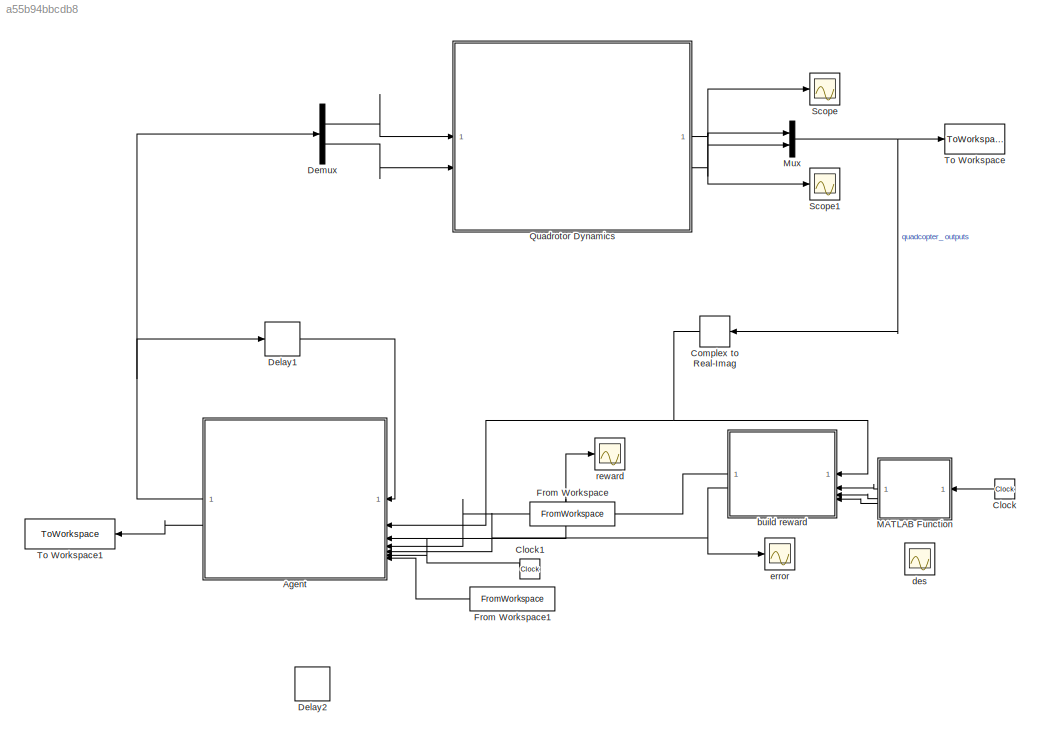
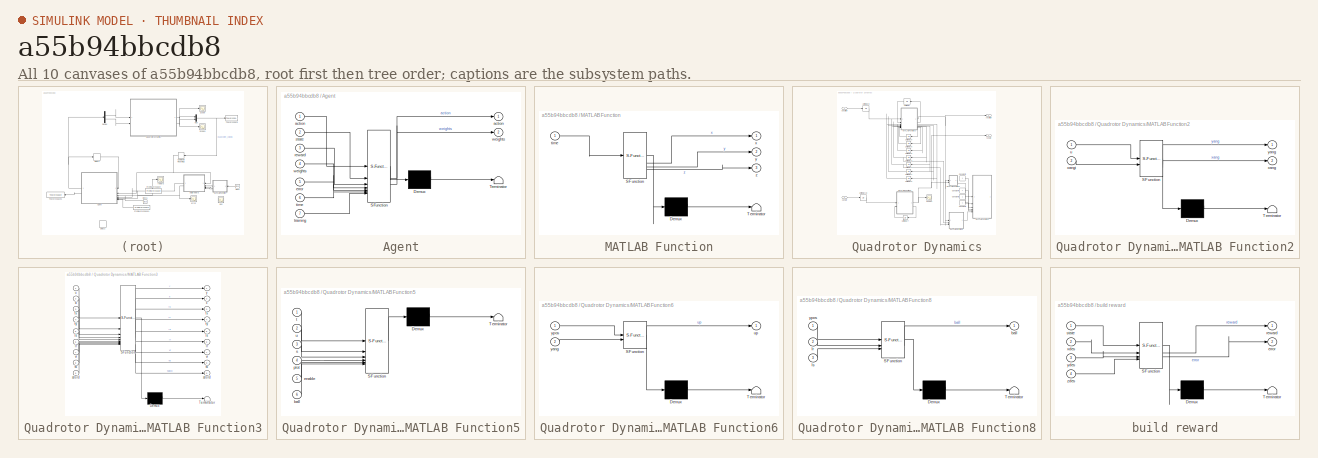
[diagram: thumbnail index - all 10 canvases of the model, root first then tree order]
MODEL slx_a55b94bbcdb8
KIND model
CONFIG AbsTol = auto
CONFIG EnableMultiTasking = off
CONFIG FixedStep = 0.025
CONFIG MaxStep = auto
CONFIG MinStep = auto
CONFIG RelTol = 1e-3
CONFIG SampleTimeConstraint = Unconstrained
CONFIG SolverName = FixedStepDiscrete
CONFIG StartTime = 0.0
CONFIG StopTime = 75
BLOCK [SubSystem] Agent
  ErrorFcn = Stateflow.Translate.translate
  LibrarySourceBlock = simulink/User-Defined\nFunctions/MATLAB Function
  PermitHierarchicalResolution = ExplicitOnly
  SFBlockType = MATLAB Function
  TreatAsAtomicUnit = on
BLOCK [Demux] Agent/ Demux 
  Outputs = 1
BLOCK [S-Function] Agent/ SFunction 
  EnableBusSupport = on
  FunctionName = sf_sfun
  PortCounts = [7 3]
  SFcnIsStateOwnerBlock = off
  SFunctionDeploymentMode = off
  Tag = Stateflow S-Function 1
BLOCK [Terminator] Agent/ Terminator 
BLOCK [Outport] Agent/action
BLOCK [Inport] Agent/action 
BLOCK [Inport] Agent/error
  Port = 5
BLOCK [Inport] Agent/reward
  Port = 3
BLOCK [Inport] Agent/state
  Port = 2
BLOCK [Inport] Agent/time
  Port = 6
BLOCK [Inport] Agent/training
  Port = 7
BLOCK [Outport] Agent/weights
  Port = 2
BLOCK [Inport] Agent/weights 
  Port = 4
BLOCK [Clock] Clock
BLOCK [Clock] Clock1
BLOCK [ComplexToRealImag] Complex to Real-Imag
BLOCK [Delay] Delay1
  DelayLength = 1
  InitialCondition = 0
  InputPortMap = u0
BLOCK [Delay] Delay2
  DelayLength = 1
  InitialCondition = 0
  InputPortMap = u0
BLOCK [Demux] Demux
  DisplayOption = none
  Outputs = 2
BLOCK [FromWorkspace] From Workspace
  SampleTime = -1
  VariableName = weights
BLOCK [FromWorkspace] From Workspace1
  SampleTime = -1
  VariableName = training
BLOCK [SubSystem] MATLAB Function
  ErrorFcn = Stateflow.Translate.translate
  PermitHierarchicalResolution = ExplicitOnly
  SFBlockType = MATLAB Function
  TreatAsAtomicUnit = on
BLOCK [Demux] MATLAB Function/ Demux 
  Outputs = 1
BLOCK [S-Function] MATLAB Function/ SFunction 
  EnableBusSupport = on
  FunctionName = sf_sfun
  PortCounts = [1 4]
  SFcnIsStateOwnerBlock = off
  SFunctionDeploymentMode = off
  Tag = Stateflow S-Function 3
BLOCK [Terminator] MATLAB Function/ Terminator 
BLOCK [Inport] MATLAB Function/time
BLOCK [Outport] MATLAB Function/x
BLOCK [Outport] MATLAB Function/y
  Port = 2
BLOCK [Outport] MATLAB Function/z
  Port = 3
BLOCK [Mux] Mux
  DisplayOption = bar
  Inputs = 2
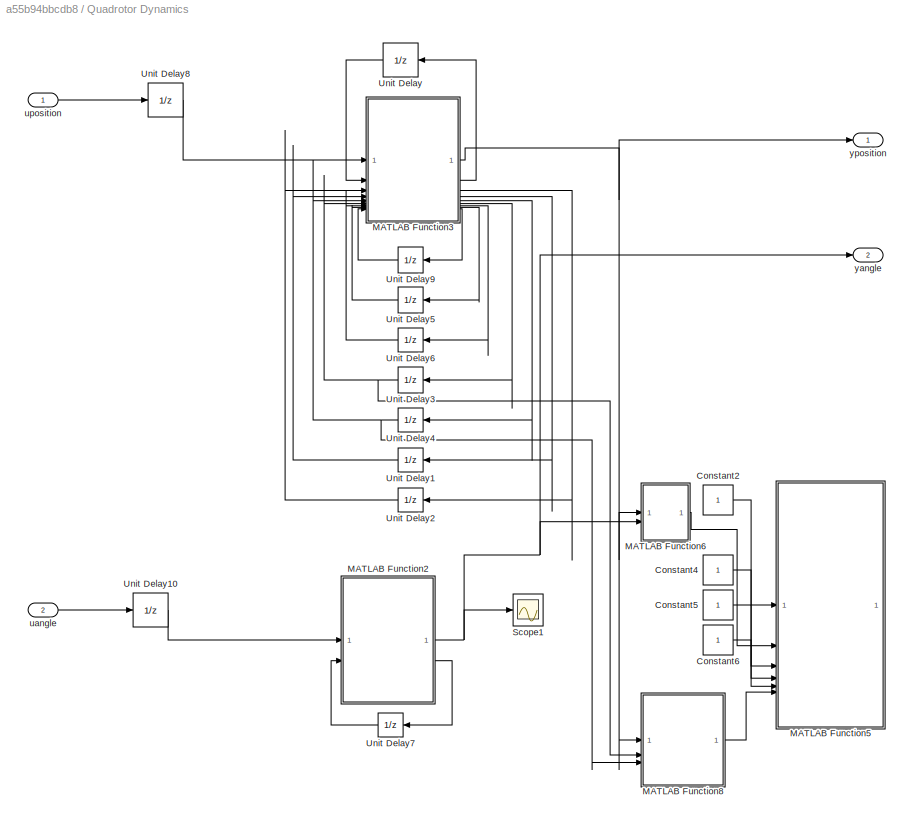
BLOCK [SubSystem] Quadrotor Dynamics
BLOCK [Constant] Quadrotor Dynamics/Constant2
BLOCK [Constant] Quadrotor Dynamics/Constant4
BLOCK [Constant] Quadrotor Dynamics/Constant5
BLOCK [Constant] Quadrotor Dynamics/Constant6
BLOCK [SubSystem] Quadrotor Dynamics/MATLAB Function2
  ErrorFcn = Stateflow.Translate.translate
  PermitHierarchicalResolution = ExplicitOnly
  SFBlockType = MATLAB Function
  TreatAsAtomicUnit = on
BLOCK [Demux] Quadrotor Dynamics/MATLAB Function2/ Demux 
  Outputs = 1
BLOCK [S-Function] Quadrotor Dynamics/MATLAB Function2/ SFunction 
  EnableBusSupport = on
  FunctionName = sf_sfun
  PortCounts = [2 3]
  SFcnIsStateOwnerBlock = off
  SFunctionDeploymentMode = off
  Tag = Stateflow S-Function 10
BLOCK [Terminator] Quadrotor Dynamics/MATLAB Function2/ Terminator 
BLOCK [Inport] Quadrotor Dynamics/MATLAB Function2/u
BLOCK [Outport] Quadrotor Dynamics/MATLAB Function2/xang
  Port = 2
BLOCK [Inport] Quadrotor Dynamics/MATLAB Function2/xangi
  Port = 2
BLOCK [Outport] Quadrotor Dynamics/MATLAB Function2/yang
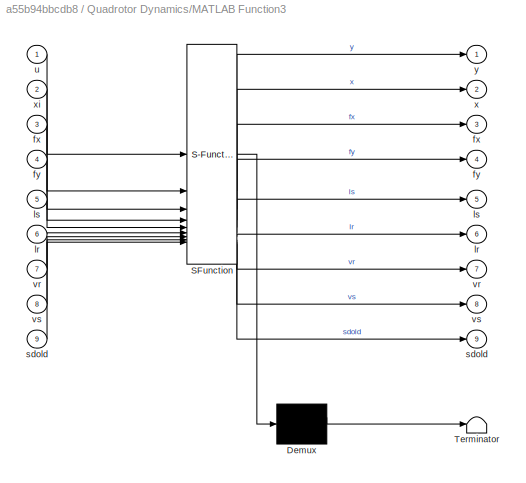
BLOCK [SubSystem] Quadrotor Dynamics/MATLAB Function3
  ErrorFcn = Stateflow.Translate.translate
  PermitHierarchicalResolution = ExplicitOnly
  SFBlockType = MATLAB Function
  TreatAsAtomicUnit = on
BLOCK [Demux] Quadrotor Dynamics/MATLAB Function3/ Demux 
  Outputs = 1
BLOCK [S-Function] Quadrotor Dynamics/MATLAB Function3/ SFunction 
  EnableBusSupport = on
  FunctionName = sf_sfun
  PortCounts = [9 10]
  SFcnIsStateOwnerBlock = off
  SFunctionDeploymentMode = off
  Tag = Stateflow S-Function 11
BLOCK [Terminator] Quadrotor Dynamics/MATLAB Function3/ Terminator 
BLOCK [Outport] Quadrotor Dynamics/MATLAB Function3/fx
  Port = 3
BLOCK [Inport] Quadrotor Dynamics/MATLAB Function3/fx 
  Port = 3
BLOCK [Outport] Quadrotor Dynamics/MATLAB Function3/fy
  Port = 4
BLOCK [Inport] Quadrotor Dynamics/MATLAB Function3/fy 
  Port = 4
BLOCK [Outport] Quadrotor Dynamics/MATLAB Function3/lr
  Port = 6
BLOCK [Inport] Quadrotor Dynamics/MATLAB Function3/lr 
  Port = 6
BLOCK [Outport] Quadrotor Dynamics/MATLAB Function3/ls
  Port = 5
BLOCK [Inport] Quadrotor Dynamics/MATLAB Function3/ls 
  Port = 5
BLOCK [Outport] Quadrotor Dynamics/MATLAB Function3/sdold
  Port = 9
BLOCK [Inport] Quadrotor Dynamics/MATLAB Function3/sdold 
  Port = 9
BLOCK [Inport] Quadrotor Dynamics/MATLAB Function3/u
BLOCK [Outport] Quadrotor Dynamics/MATLAB Function3/vr
  Port = 7
BLOCK [Inport] Quadrotor Dynamics/MATLAB Function3/vr 
  Port = 7
BLOCK [Outport] Quadrotor Dynamics/MATLAB Function3/vs
  Port = 8
BLOCK [Inport] Quadrotor Dynamics/MATLAB Function3/vs 
  Port = 8
BLOCK [Outport] Quadrotor Dynamics/MATLAB Function3/x
  Port = 2
BLOCK [Inport] Quadrotor Dynamics/MATLAB Function3/xi
  Port = 2
BLOCK [Outport] Quadrotor Dynamics/MATLAB Function3/y
BLOCK [SubSystem] Quadrotor Dynamics/MATLAB Function5
  ErrorFcn = Stateflow.Translate.translate
  PermitHierarchicalResolution = ExplicitOnly
  SFBlockType = MATLAB Function
  TreatAsAtomicUnit = on
BLOCK [Demux] Quadrotor Dynamics/MATLAB Function5/ Demux 
  Outputs = 1
BLOCK [S-Function] Quadrotor Dynamics/MATLAB Function5/ SFunction 
  EnableBusSupport = on
  FunctionName = sf_sfun
  PortCounts = [6 1]
  SFcnIsStateOwnerBlock = off
  SFunctionDeploymentMode = off
  Tag = Stateflow S-Function 12
BLOCK [Terminator] Quadrotor Dynamics/MATLAB Function5/ Terminator 
BLOCK [Inport] Quadrotor Dynamics/MATLAB Function5/ball
  Port = 6
BLOCK [Inport] Quadrotor Dynamics/MATLAB Function5/enable
  Port = 5
BLOCK [Inport] Quadrotor Dynamics/MATLAB Function5/plot
  Port = 4
BLOCK [Inport] Quadrotor Dynamics/MATLAB Function5/s
  Port = 3
BLOCK [Inport] Quadrotor Dynamics/MATLAB Function5/t
BLOCK [Inport] Quadrotor Dynamics/MATLAB Function5/u
  Port = 2
BLOCK [SubSystem] Quadrotor Dynamics/MATLAB Function6
  ErrorFcn = Stateflow.Translate.translate
  PermitHierarchicalResolution = ExplicitOnly
  SFBlockType = MATLAB Function
  TreatAsAtomicUnit = on
BLOCK [Demux] Quadrotor Dynamics/MATLAB Function6/ Demux 
  Outputs = 1
BLOCK [S-Function] Quadrotor Dynamics/MATLAB Function6/ SFunction 
  EnableBusSupport = on
  FunctionName = sf_sfun
  PortCounts = [2 2]
  SFcnIsStateOwnerBlock = off
  SFunctionDeploymentMode = off
  Tag = Stateflow S-Function 13
BLOCK [Terminator] Quadrotor Dynamics/MATLAB Function6/ Terminator 
BLOCK [Outport] Quadrotor Dynamics/MATLAB Function6/up
BLOCK [Inport] Quadrotor Dynamics/MATLAB Function6/yang
  Port = 2
BLOCK [Inport] Quadrotor Dynamics/MATLAB Function6/ypos
BLOCK [SubSystem] Quadrotor Dynamics/MATLAB Function8
  ErrorFcn = Stateflow.Translate.translate
  PermitHierarchicalResolution = ExplicitOnly
  SFBlockType = MATLAB Function
  TreatAsAtomicUnit = on
BLOCK [Demux] Quadrotor Dynamics/MATLAB Function8/ Demux 
  Outputs = 1
BLOCK [S-Function] Quadrotor Dynamics/MATLAB Function8/ SFunction 
  EnableBusSupport = on
  FunctionName = sf_sfun
  PortCounts = [3 2]
  SFcnIsStateOwnerBlock = off
  SFunctionDeploymentMode = off
  Tag = Stateflow S-Function 14
BLOCK [Terminator] Quadrotor Dynamics/MATLAB Function8/ Terminator 
BLOCK [Outport] Quadrotor Dynamics/MATLAB Function8/ball
BLOCK [Inport] Quadrotor Dynamics/MATLAB Function8/lr
  Port = 2
BLOCK [Inport] Quadrotor Dynamics/MATLAB Function8/ls
  Port = 3
BLOCK [Inport] Quadrotor Dynamics/MATLAB Function8/ypos
BLOCK [Scope] Quadrotor Dynamics/Scope1
  Floating = off
  NumInputPorts = 1
  ScopeSpecificationString = Simulink.scopes.TimeScopeBlockCfg('CurrentConfiguration', extmgr.ConfigurationSet(extmgr.Configuration('Core','General UI',true),extmgr.Configuration('Core','Source UI',true),extmgr.Configuration('Sources','WiredSimulink',true,'DataLoggingVariableName','ScopeData1'),extmgr.Configuration('Visuals','Time Domain',true,'SerializedDisplays',{struct('MinYLimReal','-4.47139','MaxYLimReal','0.58315','YLab...<+1467ch>
BLOCK [UnitDelay] Quadrotor Dynamics/Unit Delay
  HasFrameUpgradeWarning = on
  InitialCondition = [0\n0\n0\n0\n1.50000000000000\n0]
  SampleTime = -1
BLOCK [UnitDelay] Quadrotor Dynamics/Unit Delay1
  HasFrameUpgradeWarning = on
  SampleTime = -1
BLOCK [UnitDelay] Quadrotor Dynamics/Unit Delay10
  HasFrameUpgradeWarning = on
  InitialCondition = [0\n0\n0]
  SampleTime = -1
BLOCK [UnitDelay] Quadrotor Dynamics/Unit Delay2
  HasFrameUpgradeWarning = on
  SampleTime = -1
BLOCK [UnitDelay] Quadrotor Dynamics/Unit Delay3
  HasFrameUpgradeWarning = on
  SampleTime = -1
BLOCK [UnitDelay] Quadrotor Dynamics/Unit Delay4
  HasFrameUpgradeWarning = on
  SampleTime = -1
BLOCK [UnitDelay] Quadrotor Dynamics/Unit Delay5
  HasFrameUpgradeWarning = on
  SampleTime = -1
BLOCK [UnitDelay] Quadrotor Dynamics/Unit Delay6
  HasFrameUpgradeWarning = on
  SampleTime = -1
BLOCK [UnitDelay] Quadrotor Dynamics/Unit Delay7
  HasFrameUpgradeWarning = on
  InitialCondition = [0\n0\n0\n0\n0\n0]
  SampleTime = -1
BLOCK [UnitDelay] Quadrotor Dynamics/Unit Delay8
  HasFrameUpgradeWarning = on
  InitialCondition = [0\n0\n0]
  SampleTime = -1
BLOCK [UnitDelay] Quadrotor Dynamics/Unit Delay9
  HasFrameUpgradeWarning = on
  SampleTime = -1
BLOCK [Inport] Quadrotor Dynamics/uangle
  Port = 2
BLOCK [Inport] Quadrotor Dynamics/uposition
BLOCK [Outport] Quadrotor Dynamics/yangle
  Port = 2
BLOCK [Outport] Quadrotor Dynamics/yposition
BLOCK [Scope] Scope
  Floating = off
  NumInputPorts = 1
  ScopeSpecificationString = Simulink.scopes.TimeScopeBlockCfg('CurrentConfiguration', extmgr.ConfigurationSet(extmgr.Configuration('Core','General UI',true),extmgr.Configuration('Core','Source UI',true),extmgr.Configuration('Sources','WiredSimulink',true,'DataLoggingVariableName','ScopeData2'),extmgr.Configuration('Visuals','Time Domain',true,'SerializedDisplays',{struct('MinYLimReal','-0.18751','MaxYLimReal','1.68753','YLab...<+1457ch>
BLOCK [Scope] Scope1
  Floating = off
  NumInputPorts = 1
  ScopeSpecificationString = Simulink.scopes.TimeScopeBlockCfg('CurrentConfiguration', extmgr.ConfigurationSet(extmgr.Configuration('Core','General UI',true),extmgr.Configuration('Core','Source UI',true),extmgr.Configuration('Sources','WiredSimulink',true,'DataLoggingVariableName','ScopeData3'),extmgr.Configuration('Visuals','Time Domain',true,'SerializedDisplays',{struct('MinYLimReal','-0.00011','MaxYLimReal','0.0002','YLabe...<+1465ch>
BLOCK [ToWorkspace] To Workspace
  MaxDataPoints = Inf
  SampleTime = -1
  VariableName = y
BLOCK [ToWorkspace] To Workspace1
  FixptAsFi = on
  MaxDataPoints = inf
  SampleTime = -1
  SaveFormat = Timeseries
  VariableName = weights
BLOCK [SubSystem] build reward
  ErrorFcn = Stateflow.Translate.translate
  LibrarySourceBlock = simulink/User-Defined\nFunctions/MATLAB Function
  PermitHierarchicalResolution = ExplicitOnly
  SFBlockType = MATLAB Function
  TreatAsAtomicUnit = on
BLOCK [Demux] build reward/ Demux 
  Outputs = 1
BLOCK [S-Function] build reward/ SFunction 
  EnableBusSupport = on
  FunctionName = sf_sfun
  PortCounts = [4 3]
  SFcnIsStateOwnerBlock = off
  SFunctionDeploymentMode = off
  Tag = Stateflow S-Function 2
BLOCK [Terminator] build reward/ Terminator 
BLOCK [Outport] build reward/error
  Port = 2
BLOCK [Outport] build reward/reward
BLOCK [Inport] build reward/state
BLOCK [Inport] build reward/xdes
  Port = 2
BLOCK [Inport] build reward/ydes
  Port = 3
BLOCK [Inport] build reward/zdes
  Port = 4
BLOCK [Scope] des
  Floating = off
  NumInputPorts = 1
  ScopeSpecificationString = Simulink.scopes.TimeScopeBlockCfg('CurrentConfiguration', extmgr.ConfigurationSet(extmgr.Configuration('Core','General UI',true),extmgr.Configuration('Core','Source UI',true),extmgr.Configuration('Sources','WiredSimulink',true,'DataLoggingVariableName','ScopeData3'),extmgr.Configuration('Visuals','Time Domain',true,'SerializedDisplays',{struct('MinYLimReal','-1.00000','MaxYLimReal','1.00000','YLab...<+1430ch>
BLOCK [Scope] error
  Floating = off
  NumInputPorts = 1
  ScopeSpecificationString = Simulink.scopes.TimeScopeBlockCfg('CurrentConfiguration', extmgr.ConfigurationSet(extmgr.Configuration('Core','General UI',true),extmgr.Configuration('Core','Source UI',true),extmgr.Configuration('Sources','WiredSimulink',true,'DataLoggingVariableName','ScopeData2'),extmgr.Configuration('Visuals','Time Domain',true,'SerializedDisplays',{struct('MinYLimReal','-1.12326','MaxYLimReal','0.54105','YLab...<+1549ch>
BLOCK [Scope] reward
  Floating = off
  NumInputPorts = 1
  ScopeSpecificationString = Simulink.scopes.TimeScopeBlockCfg('CurrentConfiguration', extmgr.ConfigurationSet(extmgr.Configuration('Core','General UI',true),extmgr.Configuration('Core','Source UI',true),extmgr.Configuration('Sources','WiredSimulink',true,'DataLoggingVariableName','ScopeData1'),extmgr.Configuration('Visuals','Time Domain',true,'SerializedDisplays',{struct('MinYLimReal','-0.91658','MaxYLimReal','0.10286','YLab...<+1558ch>
NET Agent:1 -> Delay1:1, Demux:1
LINE Agent:2 -> To Workspace1:1
LINE Clock1:1 -> Agent:6
LINE Clock:1 -> MATLAB Function:1
NET Complex to Real-Imag:1 -> Agent:2, build reward:1
LINE Delay1:1 -> Agent:1
LINE Demux:1 -> Quadrotor Dynamics:1
LINE Demux:2 -> Quadrotor Dynamics:2
LINE From Workspace1:1 -> Agent:7
LINE From Workspace:1 -> Agent:4
LINE MATLAB Function:1 -> build reward:2
LINE MATLAB Function:2 -> build reward:3
LINE MATLAB Function:3 -> build reward:4
NET Mux:1 -> Complex to Real-Imag:1, To Workspace:1
LINE Quadrotor Dynamics/Constant2:1 -> Quadrotor Dynamics/MATLAB Function5:1
LINE Quadrotor Dynamics/Constant4:1 -> Quadrotor Dynamics/MATLAB Function5:3
LINE Quadrotor Dynamics/Constant5:1 -> Quadrotor Dynamics/MATLAB Function5:4
LINE Quadrotor Dynamics/Constant6:1 -> Quadrotor Dynamics/MATLAB Function5:5
NET Quadrotor Dynamics/MATLAB Function2:1 -> Quadrotor Dynamics/MATLAB Function6:2, Quadrotor Dynamics/Scope1:1, Quadrotor Dynamics/yangle:1
LINE Quadrotor Dynamics/MATLAB Function2:2 -> Quadrotor Dynamics/Unit Delay7:1
NET Quadrotor Dynamics/MATLAB Function3:1 -> Quadrotor Dynamics/MATLAB Function6:1, Quadrotor Dynamics/MATLAB Function8:1, Quadrotor Dynamics/yposition:1
LINE Quadrotor Dynamics/MATLAB Function3:2 -> Quadrotor Dynamics/Unit Delay:1
LINE Quadrotor Dynamics/MATLAB Function3:3 -> Quadrotor Dynamics/Unit Delay2:1
LINE Quadrotor Dynamics/MATLAB Function3:4 -> Quadrotor Dynamics/Unit Delay1:1
LINE Quadrotor Dynamics/MATLAB Function3:5 -> Quadrotor Dynamics/Unit Delay4:1
LINE Quadrotor Dynamics/MATLAB Function3:6 -> Quadrotor Dynamics/Unit Delay3:1
LINE Quadrotor Dynamics/MATLAB Function3:7 -> Quadrotor Dynamics/Unit Delay6:1
LINE Quadrotor Dynamics/MATLAB Function3:8 -> Quadrotor Dynamics/Unit Delay5:1
LINE Quadrotor Dynamics/MATLAB Function3:9 -> Quadrotor Dynamics/Unit Delay9:1
LINE Quadrotor Dynamics/MATLAB Function6:1 -> Quadrotor Dynamics/MATLAB Function5:2
LINE Quadrotor Dynamics/MATLAB Function8:1 -> Quadrotor Dynamics/MATLAB Function5:6
LINE Quadrotor Dynamics/Unit Delay10:1 -> Quadrotor Dynamics/MATLAB Function2:1
LINE Quadrotor Dynamics/Unit Delay1:1 -> Quadrotor Dynamics/MATLAB Function3:4
LINE Quadrotor Dynamics/Unit Delay2:1 -> Quadrotor Dynamics/MATLAB Function3:3
NET Quadrotor Dynamics/Unit Delay3:1 -> Quadrotor Dynamics/MATLAB Function3:6, Quadrotor Dynamics/MATLAB Function8:2
NET Quadrotor Dynamics/Unit Delay4:1 -> Quadrotor Dynamics/MATLAB Function3:5, Quadrotor Dynamics/MATLAB Function8:3
LINE Quadrotor Dynamics/Unit Delay5:1 -> Quadrotor Dynamics/MATLAB Function3:8
LINE Quadrotor Dynamics/Unit Delay6:1 -> Quadrotor Dynamics/MATLAB Function3:7
LINE Quadrotor Dynamics/Unit Delay7:1 -> Quadrotor Dynamics/MATLAB Function2:2
LINE Quadrotor Dynamics/Unit Delay8:1 -> Quadrotor Dynamics/MATLAB Function3:1
LINE Quadrotor Dynamics/Unit Delay9:1 -> Quadrotor Dynamics/MATLAB Function3:9
LINE Quadrotor Dynamics/Unit Delay:1 -> Quadrotor Dynamics/MATLAB Function3:2
LINE Quadrotor Dynamics/uangle:1 -> Quadrotor Dynamics/Unit Delay10:1
LINE Quadrotor Dynamics/uposition:1 -> Quadrotor Dynamics/Unit Delay8:1
NET Quadrotor Dynamics:1 -> Mux:1, Scope:1
NET Quadrotor Dynamics:2 -> Mux:2, Scope1:1
NET build reward:1 -> Agent:3, reward:1
NET build reward:2 -> Agent:5, error:1
note: NET lines group one-source signal fan-out (src -> all destinations, sorted); 1:1 wires keep LINE
CHART Quadrotor Dynamics/MATLAB Function5 states=1 transitions=1
  STATE_LABEL 'eML_blk_kernel()'
  STATE_LABEL 'SCRIPT:\nfunction qd_plot(t,u,s, plot, enable,ball)\n    quad.nrotors =4;\n    quad.d = 0.17;\n    quad.r = 0.1;\n    \n    a1s = zeros(1, quad.nrotors);\n    b1s = zeros(1, quad.nrotors);\n\n    \n    % vehicle dimensons\n    d = quad.d; %Hub displacement from COG\n    r = quad.r; %Rotor radius\n    D = zeros(3,4);\n    C = zeros(3,4);\n    for i = 1:quad.nrotors\n        theta = (i-1)/quad.nrotors*2*pi;\n       ...<+3608ch>'
CHART Quadrotor Dynamics/MATLAB Function6 states=1 transitions=1
  STATE_LABEL 'eML_blk_kernel()'
  STATE_LABEL 'SCRIPT:\nfunction up= upp(ypos,yang)\nup = [ypos(1) -ypos(2) -ypos(3) yang(1) yang(2) yang(3)];\n\n\n\n\n\n'
CHART Quadrotor Dynamics/MATLAB Function8 states=1 transitions=1
  STATE_LABEL 'eML_blk_kernel()'
  STATE_LABEL "SCRIPT:\nfunction ball= balll(ypos,lr,ls)\nball=[ypos(1)+lr(1) -(ypos(2)+ls(1)) 1-ypos(3)-sqrt(abs(0.25-lr(1)^2-ls(1)^2))]';\n\n\n\n\n\n"
CHART Agent states=1 transitions=1
  STATE_LABEL 'eML_blk_kernel()'
  STATE_LABEL 'SCRIPT:\nfunction [action, weights] = Agent(action, state, reward, weights, error, time, training)\n%%\n\n% \n% alpha = 0.011;\nL = 1; \nw = 0.25;\nrho = L / w; \ngamma = 1 / rho;\n\n%\nif(training == 0) % training\n\n    if(time > 5)\n\n        alpha = 0.015;\n        exploration_variance = 0.05 * rho;\n        noise = exploration_variance * randn(size(state));\n        state = state + noise;\n\n    else\n\n        alp...<+3608ch>'
CHART build reward states=1 transitions=1
  STATE_LABEL 'eML_blk_kernel()'
  STATE_LABEL 'SCRIPT:\nfunction [reward, error] = Reward(state, xdes, ydes, zdes)\n\n%\nerror = zeros(6, 1);\nerror = [3 * (state(1) - xdes); -6 * (state(2) - ydes); -1000 * (state(3) - zdes); -3 * state(4); -3 * state(5); -3 * state(6)];\n\n% Squared position error (assuming target is provided correctly)\nR_position = [30 * (state(1)-xdes)^2 ; 30 * (state(2)-ydes)^2; -1000 * (state(3)-zdes)^2];\n\n% Angle error penaliza...<+157ch>'
CHART MATLAB Function states=1 transitions=1
  STATE_LABEL 'eML_blk_kernel()'
  STATE_LABEL 'SCRIPT:\nfunction [x, y, z] = fcn(time)\n\n%\nif(time == 0)\n\n    des = [0; 0; 1.5];\n\nelse\n\n    ref = load("squaretrajectory.mat");\n    idx = time / 0.025;\n    des = ref.ref(:, idx);\n\nend\n\nx = des(1);\ny = des(2);\nz = des(3);'
CHART Quadrotor Dynamics/MATLAB Function2 states=1 transitions=1
  STATE_LABEL 'eML_blk_kernel()'
  STATE_LABEL 'SCRIPT:\nfunction [yang,xang]= sysang(u,xangi)\nTs = 1/40;\ng = 9.81;\nA = [1,0.0250000000000000,0,0,0,0;0,1,0,0,0,0;0,0,1,0.0250000000000000,0,0;0,0,0,1,0,0;0,0,0,0,1,0.0250000000000000;0,0,0,0,0,1];\nB = [0.0416666666666667,0,0;3.33333333333333,0,0;0,0.0416666666666667,0;0,3.33333333333333,0;0,0,0.0240384615384615;0,0,1.92307692307692];\nC = [1,0,0,0,0,0;0,0,1,0,0,0;0,0,0,0,1,0];\nD = zeros(3,3);\nxang ...<+80ch>'
CHART Quadrotor Dynamics/MATLAB Function3 states=1 transitions=1
  STATE_LABEL 'eML_blk_kernel()'
  STATE_LABEL 'SCRIPT:\nfunction [y,x, fx,fy,ls,lr,vr,vs,sdold]= syspos(u,xi,fx,fy,ls,lr,vr,vs,sdold)\nTs = 1/40;\ng = 9.81;\nA = [1 0.025 0 0 0 0;0 1 0 0 0 0;0 0 1 0.025 0 0;0 0 0 1 0 0;0 0 0 0 1 0.025;0 0 0 0 0 1];\nB = [-0.003065625 0 0;-0.24525 0 0;0 0.003065625 0;0 0.24525 0;0 0 0.0003125;0 0 0.025];\nC = [1 0 0 0 0 0;0 0 1 0 0 0;0 0 0 0 1 0];\nD = zeros(3,3);\nx = zeros(6,1);\ny = zeros(3,1);\nx = A*xi + B*u;\ny = C*...<+708ch>'
CHART  states=0 transitions=0
CHART  states=0 transitions=0
CHART  states=0 transitions=0
CHART  states=0 transitions=0
CHART  states=0 transitions=0
CHART  states=0 transitions=0
CHART  states=0 transitions=0
CHART  states=0 transitions=0
